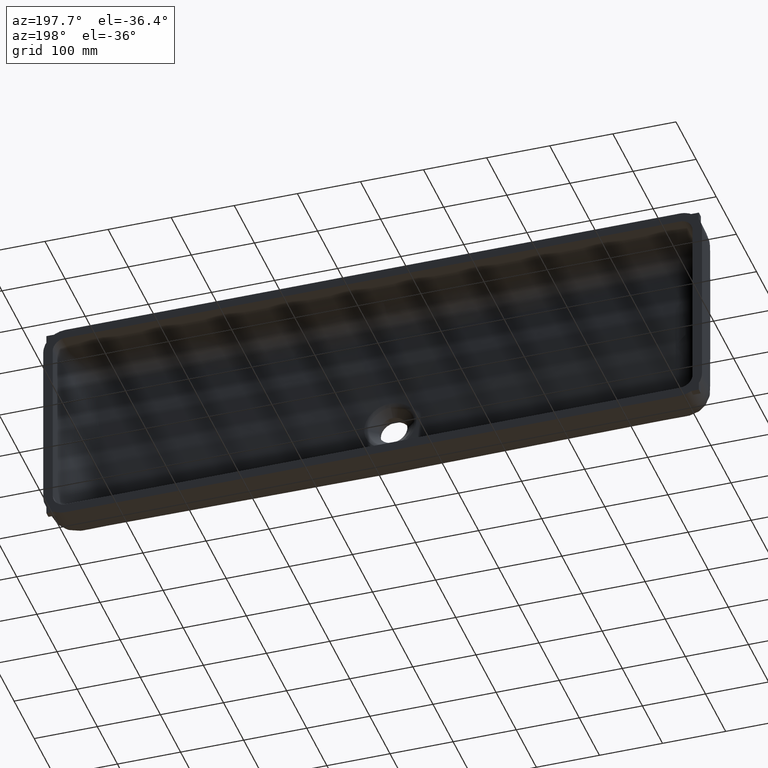
[diagram: clean part render]
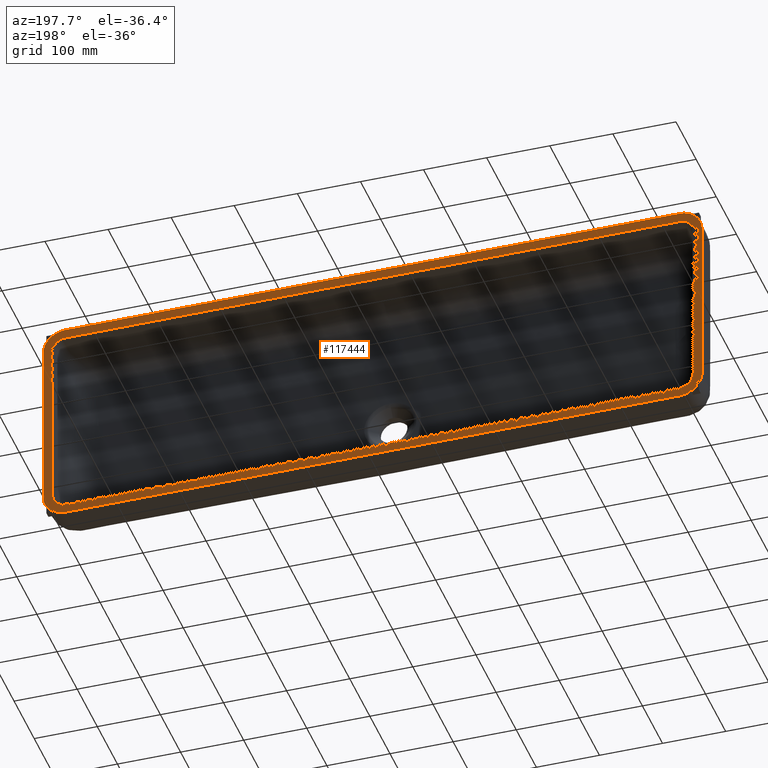
[diagram: same view with one face highlighted and labeled with its STEP entity id]
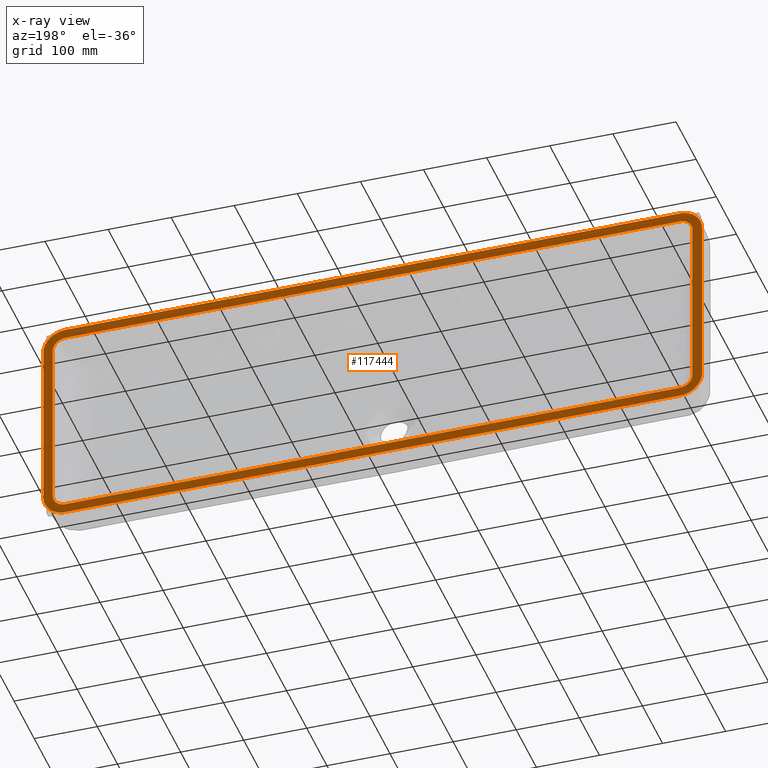
[diagram: x-ray of the same camera — body ghosted, the highlighted face saturated]
A machine part, auxiliary view. The second image highlights one B-rep face of the part: STEP entity #117444.
The next image is the same camera in x-ray: the body ghosted, the highlighted face saturated — about 0% of this face is hidden behind the body in this view.
In plain terms, the highlighted planar face has unit normal (0, -1, 0).
Its self-contained STEP definition (entity closure, byte-faithful):
#1197 = CARTESIAN_POINT ( 'NONE',  ( -0.0000000000000000000, 113.0000000000000000, 441.9476348052933200 ) ) ;
#2804 = AXIS2_PLACEMENT_3D ( 'NONE', #146769, #166588, #57859 ) ;
#5251 = DIRECTION ( 'NONE',  ( -1.000000000000000000, 0.0000000000000000000, 0.0000000000000000000 ) ) ;
#8058 = EDGE_CURVE ( 'NONE', #138541, #19438, #208370, .T. ) ;
#8302 = ORIENTED_EDGE ( 'NONE', *, *, #61609, .F. ) ;
#9167 =( BOUNDED_CURVE ( )  B_SPLINE_CURVE ( 3, ( #96326, #132836, #97106, #224148 ),
 .UNSPECIFIED., .F., .F. ) 
 B_SPLINE_CURVE_WITH_KNOTS ( ( 4, 4 ),
 ( 2.356346783439929600, 3.926838168198380200 ),
 .UNSPECIFIED. ) 
 CURVE ( )  GEOMETRIC_REPRESENTATION_ITEM ( )  RATIONAL_B_SPLINE_CURVE ( ( 1.000000000000000000, 0.8048097241718990000, 0.8048097241718990000, 1.000000000000000000 ) ) 
 REPRESENTATION_ITEM ( '' )  );
#16287 = DIRECTION ( 'NONE',  ( -1.000000000000000000, 0.0000000000000000000, 0.0000000000000000000 ) ) ;
#18710 = CARTESIAN_POINT ( 'NONE',  ( 1086.950680902087500, 113.0000000000000100, 130.0523651947476100 ) ) ;
#19397 = CARTESIAN_POINT ( 'NONE',  ( 101.3346358915822900, 112.9999999999999900, 441.9476348052934900 ) ) ;
#19399 =( BOUNDED_CURVE ( )  B_SPLINE_CURVE ( 3, ( #88431, #161470, #216239, #107437 ),
 .UNSPECIFIED., .F., .F. ) 
 B_SPLINE_CURVE_WITH_KNOTS ( ( 4, 4 ),
 ( 2.356346783439925200, 3.926838523739669900 ),
 .UNSPECIFIED. ) 
 CURVE ( )  GEOMETRIC_REPRESENTATION_ITEM ( )  RATIONAL_B_SPLINE_CURVE ( ( 1.000000000000000000, 0.8048096403827831300, 0.8048096403827831300, 1.000000000000000000 ) ) 
 REPRESENTATION_ITEM ( '' )  );
#19438 = VERTEX_POINT ( 'NONE', #32500 ) ;
#23720 = EDGE_CURVE ( 'NONE', #81362, #229210, #99166, .T. ) ;
#24462 = ORIENTED_EDGE ( 'NONE', *, *, #216371, .F. ) ;
#24929 = CARTESIAN_POINT ( 'NONE',  ( 1106.947634805215100, 113.0000000000000000, 0.0000000000000000000 ) ) ;
#26282 = CARTESIAN_POINT ( 'NONE',  ( 1098.665364108417900, 113.0000000000000000, 441.9476348052934300 ) ) ;
#26370 =( BOUNDED_CURVE ( )  B_SPLINE_CURVE ( 3, ( #227282, #172505, #209819, #101011 ),
 .UNSPECIFIED., .F., .F. ) 
 B_SPLINE_CURVE_WITH_KNOTS ( ( 4, 4 ),
 ( 2.356346783439926500, 3.926838523739667200 ),
 .UNSPECIFIED. ) 
 CURVE ( )  GEOMETRIC_REPRESENTATION_ITEM ( )  RATIONAL_B_SPLINE_CURVE ( ( 1.000000000000000000, 0.8048096403827840200, 0.8048096403827840200, 1.000000000000000000 ) ) 
 REPRESENTATION_ITEM ( '' )  );
#28913 = CARTESIAN_POINT ( 'NONE',  ( 78.05008027412583300, 113.0000000000000000, 421.9552503954783400 ) ) ;
#29272 = LINE ( 'NONE', #235287, #185482 ) ;
#30384 = ORIENTED_EDGE ( 'NONE', *, *, #230615, .T. ) ;
#31387 = EDGE_CURVE ( 'NONE', #61778, #162033, #39525, .T. ) ;
#32016 = FACE_BOUND ( 'NONE', #115485, .T. ) ;
#32500 = CARTESIAN_POINT ( 'NONE',  ( 113.0493190979126700, 113.0000000000000100, 441.9476348052932600 ) ) ;
#33935 =( BOUNDED_CURVE ( )  B_SPLINE_CURVE ( 3, ( #140996, #213264, #50534, #177514 ),
 .UNSPECIFIED., .F., .F. ) 
 B_SPLINE_CURVE_WITH_KNOTS ( ( 4, 4 ),
 ( 2.356346783439924300, 3.926838523739660600 ),
 .UNSPECIFIED. ) 
 CURVE ( )  GEOMETRIC_REPRESENTATION_ITEM ( )  RATIONAL_B_SPLINE_CURVE ( ( 1.000000000000000000, 0.8048096403827852400, 0.8048096403827852400, 1.000000000000000000 ) ) 
 REPRESENTATION_ITEM ( '' )  );
#36783 = EDGE_LOOP ( 'NONE', ( #30384, #48627, #50204, #82976, #196455, #126896, #162272, #109138 ) ) ;
#37616 = EDGE_CURVE ( 'NONE', #39465, #195283, #96487, .T. ) ;
#39465 = VERTEX_POINT ( 'NONE', #46103 ) ;
#39525 =( BOUNDED_CURVE ( )  B_SPLINE_CURVE ( 3, ( #97682, #188212, #61212, #224723 ),
 .UNSPECIFIED., .F., .F. ) 
 B_SPLINE_CURVE_WITH_KNOTS ( ( 4, 4 ),
 ( 2.356346783439912800, 3.926838523739657000 ),
 .UNSPECIFIED. ) 
 CURVE ( )  GEOMETRIC_REPRESENTATION_ITEM ( )  RATIONAL_B_SPLINE_CURVE ( ( 1.000000000000000000, 0.8048096403827833500, 0.8048096403827833500, 1.000000000000000000 ) ) 
 REPRESENTATION_ITEM ( '' )  );
#43175 = DIRECTION ( 'NONE',  ( 0.0000000000000000000, 0.0000000000000000000, -1.000000000000000000 ) ) ;
#44042 = VECTOR ( 'NONE', #153985, 1000.000000000000000 ) ;
#44489 = ORIENTED_EDGE ( 'NONE', *, *, #174259, .F. ) ;
#44534 = CARTESIAN_POINT ( 'NONE',  ( 1106.947634805215600, 113.0000000000000000, 433.6653641084957400 ) ) ;
#45277 = CARTESIAN_POINT ( 'NONE',  ( 1121.949919725873800, 113.0000000000000000, 0.0000000000000000000 ) ) ;
#46103 = CARTESIAN_POINT ( 'NONE',  ( 1086.950680902087500, 113.0000000000000000, 441.9476348052932100 ) ) ;
#47670 = VERTEX_POINT ( 'NONE', #196051 ) ;
#48627 = ORIENTED_EDGE ( 'NONE', *, *, #163147, .T. ) ;
#50204 = ORIENTED_EDGE ( 'NONE', *, *, #146426, .T. ) ;
#50534 = CARTESIAN_POINT ( 'NONE',  ( 1098.665364108417600, 113.0000000000000000, 130.0523651947476400 ) ) ;
#53518 = DIRECTION ( 'NONE',  ( -0.0000000000000000000, 0.0000000000000000000, 1.000000000000000000 ) ) ;
#55199 = CARTESIAN_POINT ( 'NONE',  ( 93.05236519478452800, 113.0000000000000000, 150.0493190978755500 ) ) ;
#55213 = LINE ( 'NONE', #24929, #114365 ) ;
#57859 = DIRECTION ( 'NONE',  ( 0.0000000000000000000, -0.0000000000000000000, -1.000000000000000000 ) ) ;
#59053 = ORIENTED_EDGE ( 'NONE', *, *, #202776, .F. ) ;
#60439 = VECTOR ( 'NONE', #5251, 1000.000000000000000 ) ;
#61212 = CARTESIAN_POINT ( 'NONE',  ( 1121.949919725874000, 113.0000000000000000, 442.4559460065561300 ) ) ;
#61609 = EDGE_CURVE ( 'NONE', #223957, #67031, #33935, .T. ) ;
#61778 = VERTEX_POINT ( 'NONE', #214044 ) ;
#63412 = VECTOR ( 'NONE', #16287, 1000.000000000000000 ) ;
#67031 = VERTEX_POINT ( 'NONE', #18710 ) ;
#69087 = VECTOR ( 'NONE', #222528, 1000.000000000000000 ) ;
#70646 = ORIENTED_EDGE ( 'NONE', *, *, #72347, .F. ) ;
#71374 = VERTEX_POINT ( 'NONE', #55199 ) ;
#72347 = EDGE_CURVE ( 'NONE', #19438, #39465, #162930, .T. ) ;
#74748 = LINE ( 'NONE', #90033, #69087 ) ;
#81362 = VERTEX_POINT ( 'NONE', #89903 ) ;
#82976 = ORIENTED_EDGE ( 'NONE', *, *, #23720, .T. ) ;
#83198 = VECTOR ( 'NONE', #53518, 1000.000000000000000 ) ;
#87218 = CARTESIAN_POINT ( 'NONE',  ( 92.54405399352177100, 112.9999999999999900, 115.0500802740890000 ) ) ;
#88431 = CARTESIAN_POINT ( 'NONE',  ( 1121.949919725874000, 113.0000000000000000, 150.0447496045627000 ) ) ;
#89211 = CARTESIAN_POINT ( 'NONE',  ( 93.05236519478454200, 113.0000000000000000, 0.0000000000000000000 ) ) ;
#89903 = CARTESIAN_POINT ( 'NONE',  ( 113.0447496045995600, 113.0000000000000000, 115.0500802740890100 ) ) ;
#90033 = CARTESIAN_POINT ( 'NONE',  ( 78.05008027412593200, 113.0000000000000000, 0.0000000000000000000 ) ) ;
#92783 = PLANE ( 'NONE',  #2804 ) ;
#96326 = CARTESIAN_POINT ( 'NONE',  ( 78.05008027412583300, 113.0000000000000000, 421.9552503954783400 ) ) ;
#96487 =( BOUNDED_CURVE ( )  B_SPLINE_CURVE ( 3, ( #226288, #26282, #44534, #117485 ),
 .UNSPECIFIED., .F., .F. ) 
 B_SPLINE_CURVE_WITH_KNOTS ( ( 4, 4 ),
 ( 2.356346783439911000, 3.926838523739658400 ),
 .UNSPECIFIED. ) 
 CURVE ( )  GEOMETRIC_REPRESENTATION_ITEM ( )  RATIONAL_B_SPLINE_CURVE ( ( 1.000000000000000000, 0.8048096403827825800, 0.8048096403827825800, 1.000000000000000000 ) ) 
 REPRESENTATION_ITEM ( '' )  );
#97106 = CARTESIAN_POINT ( 'NONE',  ( 92.54404732977202700, 113.0000000000000000, 456.9499124371076800 ) ) ;
#97682 = CARTESIAN_POINT ( 'NONE',  ( 1086.955250395400100, 113.0000000000000000, 456.9499197259518200 ) ) ;
#99166 =( BOUNDED_CURVE ( )  B_SPLINE_CURVE ( 3, ( #214253, #87218, #195994, #232523 ),
 .UNSPECIFIED., .F., .F. ) 
 B_SPLINE_CURVE_WITH_KNOTS ( ( 4, 4 ),
 ( 2.356346783439926500, 3.926838523739663200 ),
 .UNSPECIFIED. ) 
 CURVE ( )  GEOMETRIC_REPRESENTATION_ITEM ( )  RATIONAL_B_SPLINE_CURVE ( ( 1.000000000000000000, 0.8048096403827851300, 0.8048096403827851300, 1.000000000000000000 ) ) 
 REPRESENTATION_ITEM ( '' )  );
#101011 = CARTESIAN_POINT ( 'NONE',  ( 93.05236519478452800, 113.0000000000000000, 150.0493190978755500 ) ) ;
#102115 = FACE_OUTER_BOUND ( 'NONE', #36783, .T. ) ;
#107437 = CARTESIAN_POINT ( 'NONE',  ( 1086.955250395399800, 113.0000000000000000, 115.0500802740890000 ) ) ;
#109138 = ORIENTED_EDGE ( 'NONE', *, *, #31387, .T. ) ;
#114365 = VECTOR ( 'NONE', #43175, 1000.000000000000000 ) ;
#115485 = EDGE_LOOP ( 'NONE', ( #59053, #232430, #70646, #152644, #161100, #24462, #44489, #8302 ) ) ;
#117444 = ADVANCED_FACE ( 'NONE', ( #102115, #32016 ), #92783, .F. ) ;
#117485 = CARTESIAN_POINT ( 'NONE',  ( 1106.947634805215300, 113.0000000000000000, 421.9506809021655700 ) ) ;
#124176 = VERTEX_POINT ( 'NONE', #137920 ) ;
#125784 = LINE ( 'NONE', #89211, #83198 ) ;
#126896 = ORIENTED_EDGE ( 'NONE', *, *, #201704, .T. ) ;
#128392 = CARTESIAN_POINT ( 'NONE',  ( 93.05236519478448500, 113.0000000000000000, 421.9506809021655200 ) ) ;
#130226 = CARTESIAN_POINT ( 'NONE',  ( 1086.955250395399800, 113.0000000000000000, 115.0500802740890000 ) ) ;
#131432 = CARTESIAN_POINT ( 'NONE',  ( 93.05236519478448500, 113.0000000000000000, 421.9506809021655200 ) ) ;
#132057 = CARTESIAN_POINT ( 'NONE',  ( 1106.947634805215300, 113.0000000000000000, 421.9506809021655700 ) ) ;
#132836 = CARTESIAN_POINT ( 'NONE',  ( 78.05008027412586100, 113.0000000000000000, 442.4559402266871200 ) ) ;
#135170 = CARTESIAN_POINT ( 'NONE',  ( 93.05236519478444300, 112.9999999999999900, 433.6653641084958500 ) ) ;
#135726 = CARTESIAN_POINT ( 'NONE',  ( 78.05008027412593200, 113.0000000000000000, 150.0447496045627500 ) ) ;
#137920 = CARTESIAN_POINT ( 'NONE',  ( 113.0493190979124900, 113.0000000000000000, 130.0523651947476100 ) ) ;
#138541 = VERTEX_POINT ( 'NONE', #131432 ) ;
#139705 = LINE ( 'NONE', #222750, #60439 ) ;
#140996 = CARTESIAN_POINT ( 'NONE',  ( 1106.947634805215100, 113.0000000000000000, 150.0493190978754400 ) ) ;
#143205 = CARTESIAN_POINT ( 'NONE',  ( 1121.949919725874000, 113.0000000000000000, 421.9552503954783400 ) ) ;
#146426 = EDGE_CURVE ( 'NONE', #221209, #81362, #139705, .T. ) ;
#146769 = CARTESIAN_POINT ( 'NONE',  ( 0.0000000000000000000, 113.0000000000000000, 0.0000000000000000000 ) ) ;
#152644 = ORIENTED_EDGE ( 'NONE', *, *, #8058, .F. ) ;
#153985 = DIRECTION ( 'NONE',  ( 0.0000000000000000000, 0.0000000000000000000, -1.000000000000000000 ) ) ;
#155839 = VERTEX_POINT ( 'NONE', #28913 ) ;
#161100 = ORIENTED_EDGE ( 'NONE', *, *, #165180, .F. ) ;
#161470 = CARTESIAN_POINT ( 'NONE',  ( 1121.949919725874000, 113.0000000000000100, 129.5440539934847700 ) ) ;
#162033 = VERTEX_POINT ( 'NONE', #143205 ) ;
#162272 = ORIENTED_EDGE ( 'NONE', *, *, #169705, .T. ) ;
#162298 = CARTESIAN_POINT ( 'NONE',  ( 113.0447371587594600, 113.0000000000000000, 456.9499197259518700 ) ) ;
#162930 = LINE ( 'NONE', #1197, #214211 ) ;
#163147 = EDGE_CURVE ( 'NONE', #47670, #221209, #19399, .T. ) ;
#164700 = DIRECTION ( 'NONE',  ( 1.000000000000000000, 0.0000000000000000000, 0.0000000000000000000 ) ) ;
#165180 = EDGE_CURVE ( 'NONE', #71374, #138541, #125784, .T. ) ;
#166588 = DIRECTION ( 'NONE',  ( 0.0000000000000000000, -1.000000000000000000, 0.0000000000000000000 ) ) ;
#168380 = LINE ( 'NONE', #233782, #63412 ) ;
#169705 = EDGE_CURVE ( 'NONE', #179354, #61778, #29272, .T. ) ;
#171459 = CARTESIAN_POINT ( 'NONE',  ( 1106.947634805215100, 113.0000000000000000, 150.0493190978754400 ) ) ;
#172505 = CARTESIAN_POINT ( 'NONE',  ( 101.3346358915821200, 113.0000000000000000, 130.0523651947476400 ) ) ;
#174259 = EDGE_CURVE ( 'NONE', #67031, #124176, #168380, .T. ) ;
#177514 = CARTESIAN_POINT ( 'NONE',  ( 1086.950680902087500, 113.0000000000000100, 130.0523651947476100 ) ) ;
#179354 = VERTEX_POINT ( 'NONE', #162298 ) ;
#180505 = DIRECTION ( 'NONE',  ( 1.000000000000000000, 0.0000000000000000000, 0.0000000000000000000 ) ) ;
#182960 = EDGE_CURVE ( 'NONE', #229210, #155839, #74748, .T. ) ;
#185482 = VECTOR ( 'NONE', #180505, 1000.000000000000000 ) ;
#188212 = CARTESIAN_POINT ( 'NONE',  ( 1107.455946006477900, 113.0000000000000000, 456.9499197259519900 ) ) ;
#190991 = CARTESIAN_POINT ( 'NONE',  ( 113.0493190979126700, 113.0000000000000100, 441.9476348052932600 ) ) ;
#194603 = LINE ( 'NONE', #45277, #44042 ) ;
#195283 = VERTEX_POINT ( 'NONE', #132057 ) ;
#195994 = CARTESIAN_POINT ( 'NONE',  ( 78.05008027412587500, 112.9999999999999900, 129.5440539934849700 ) ) ;
#196051 = CARTESIAN_POINT ( 'NONE',  ( 1121.949919725874000, 113.0000000000000000, 150.0447496045627000 ) ) ;
#196455 = ORIENTED_EDGE ( 'NONE', *, *, #182960, .T. ) ;
#201704 = EDGE_CURVE ( 'NONE', #155839, #179354, #9167, .T. ) ;
#202776 = EDGE_CURVE ( 'NONE', #195283, #223957, #55213, .T. ) ;
#208370 =( BOUNDED_CURVE ( )  B_SPLINE_CURVE ( 3, ( #128392, #135170, #19397, #190991 ),
 .UNSPECIFIED., .F., .F. ) 
 B_SPLINE_CURVE_WITH_KNOTS ( ( 4, 4 ),
 ( 2.356346783439927900, 3.926838523739690300 ),
 .UNSPECIFIED. ) 
 CURVE ( )  GEOMETRIC_REPRESENTATION_ITEM ( )  RATIONAL_B_SPLINE_CURVE ( ( 1.000000000000000000, 0.8048096403827790200, 0.8048096403827790200, 1.000000000000000000 ) ) 
 REPRESENTATION_ITEM ( '' )  );
#209819 = CARTESIAN_POINT ( 'NONE',  ( 93.05236519478445700, 113.0000000000000000, 138.3346358915453600 ) ) ;
#213264 = CARTESIAN_POINT ( 'NONE',  ( 1106.947634805215100, 113.0000000000000000, 138.3346358915453000 ) ) ;
#214044 = CARTESIAN_POINT ( 'NONE',  ( 1086.955250395400100, 113.0000000000000000, 456.9499197259518200 ) ) ;
#214211 = VECTOR ( 'NONE', #164700, 1000.000000000000000 ) ;
#214253 = CARTESIAN_POINT ( 'NONE',  ( 113.0447496045995600, 113.0000000000000000, 115.0500802740890100 ) ) ;
#216239 = CARTESIAN_POINT ( 'NONE',  ( 1107.455946006477900, 113.0000000000000100, 115.0500802740888100 ) ) ;
#216371 = EDGE_CURVE ( 'NONE', #124176, #71374, #26370, .T. ) ;
#221209 = VERTEX_POINT ( 'NONE', #130226 ) ;
#222528 = DIRECTION ( 'NONE',  ( -0.0000000000000000000, 0.0000000000000000000, 1.000000000000000000 ) ) ;
#222750 = CARTESIAN_POINT ( 'NONE',  ( 0.0000000000000000000, 113.0000000000000000, 115.0500802740890000 ) ) ;
#223957 = VERTEX_POINT ( 'NONE', #171459 ) ;
#224148 = CARTESIAN_POINT ( 'NONE',  ( 113.0447371587594600, 113.0000000000000000, 456.9499197259518700 ) ) ;
#224723 = CARTESIAN_POINT ( 'NONE',  ( 1121.949919725874000, 113.0000000000000000, 421.9552503954783400 ) ) ;
#226288 = CARTESIAN_POINT ( 'NONE',  ( 1086.950680902087500, 113.0000000000000000, 441.9476348052932100 ) ) ;
#227282 = CARTESIAN_POINT ( 'NONE',  ( 113.0493190979124900, 113.0000000000000000, 130.0523651947476100 ) ) ;
#229210 = VERTEX_POINT ( 'NONE', #135726 ) ;
#230615 = EDGE_CURVE ( 'NONE', #162033, #47670, #194603, .T. ) ;
#232430 = ORIENTED_EDGE ( 'NONE', *, *, #37616, .F. ) ;
#232523 = CARTESIAN_POINT ( 'NONE',  ( 78.05008027412593200, 113.0000000000000000, 150.0447496045627500 ) ) ;
#233782 = CARTESIAN_POINT ( 'NONE',  ( 0.0000000000000000000, 113.0000000000000000, 130.0523651947476100 ) ) ;
#235287 = CARTESIAN_POINT ( 'NONE',  ( -0.0000000000000000000, 113.0000000000000000, 456.9499197259518700 ) ) ;